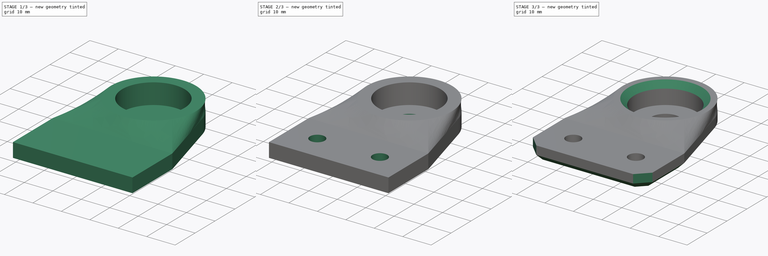
[diagram: build sequence overview — one tinted view per stage of 3, left to right]
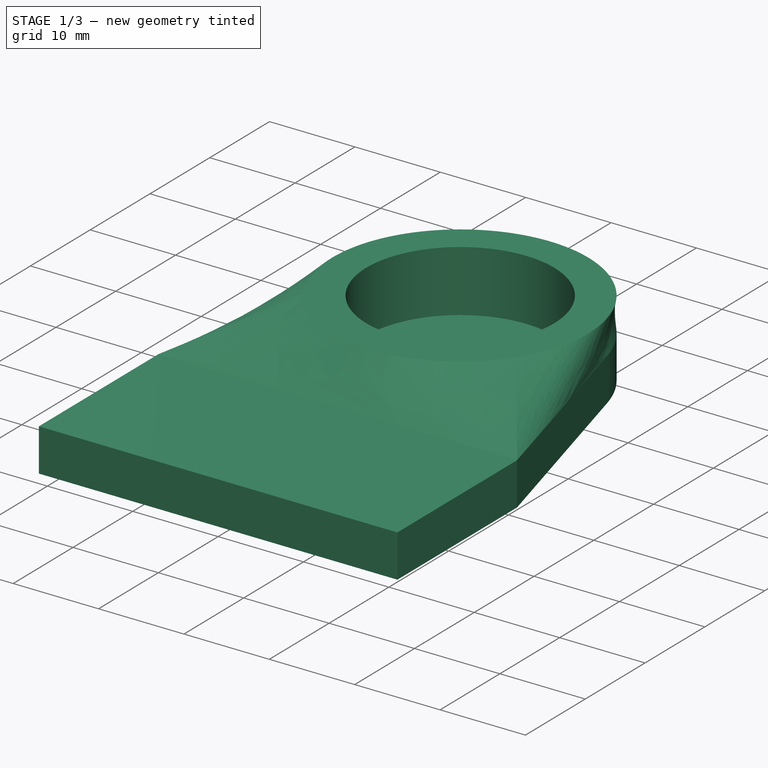
[diagram: stage 1 of 3 — iso view after this stage's code; geometry added in this stage tinted green]
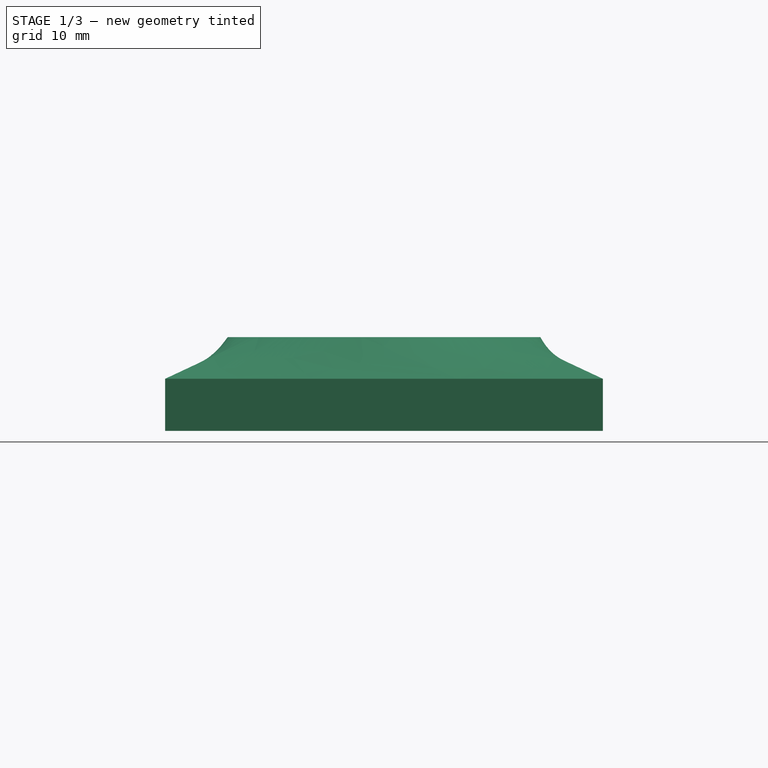
[diagram: stage 1 of 3 — front view after this stage's code; geometry added in this stage tinted green]
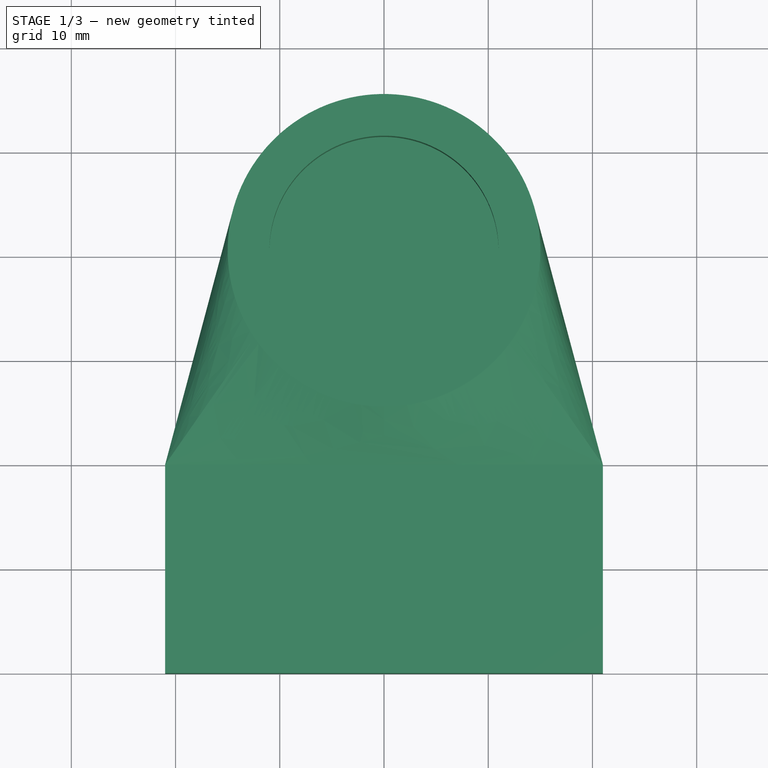
[diagram: stage 1 of 3 — top view after this stage's code; geometry added in this stage tinted green]
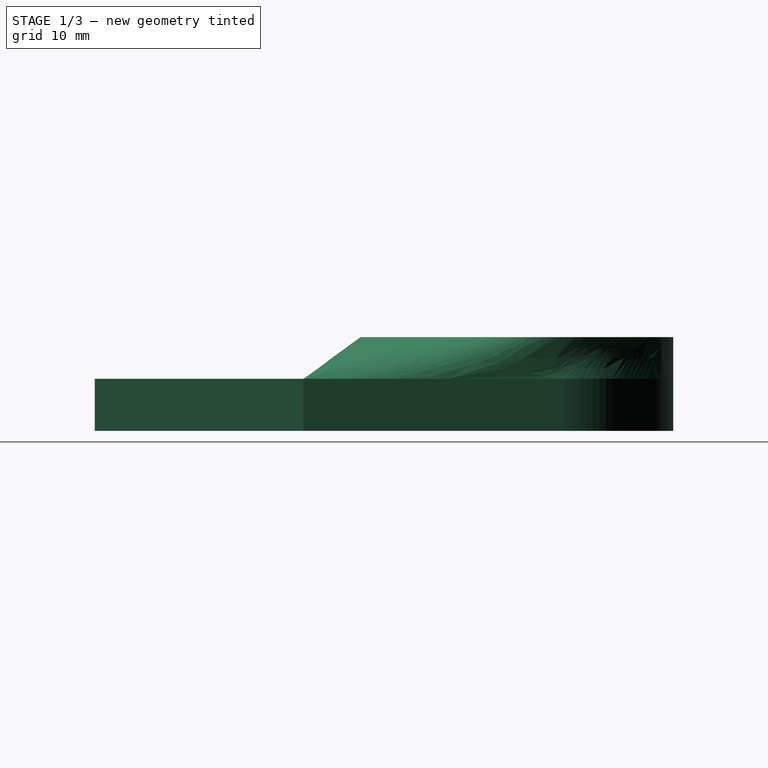
[diagram: stage 1 of 3 — right view after this stage's code; geometry added in this stage tinted green]
FCSTD DOCUMENT  (FreeCAD 0.19R24276 (Git))
Label: pillow_box_608
License: All rights reserved
LicenseURL: http://en.wikipedia.org/wiki/All_rights_reserved
objects: Sketcher::SketchObject×6, PartDesign::Pocket×3, PartDesign::Chamfer×3, PartDesign::Pad×1, PartDesign::Plane×1, PartDesign::AdditiveLoft×1, PartDesign::Body×1
note: 24 computed .brp shape members not serialized (recipe doc carries the construction recipe); baked Part::Feature solids carry a one-line shape summary decoded from their .brp

FEATURE [Sketcher::SketchObject] Sketch
  FullyConstrained = true
  MapMode = 5
  Support = -> [XY_Plane]
  sketch-geometry (18):
    g0: LineSegment StartX=-21 StartY=20 StartZ=0 EndX=-21 EndY=0 EndZ=0
    g1: LineSegment StartX=-21 StartY=0 StartZ=0 EndX=21 EndY=0 EndZ=0
    g2: LineSegment StartX=21 StartY=0 StartZ=0 EndX=21 EndY=20 EndZ=0
    g3: Circle CenterX=-11 CenterY=10 CenterZ=0 NormalX=0 NormalY=0 NormalZ=1 AngleXU=0 Radius=2.6
    g4: Circle CenterX=11 CenterY=10 CenterZ=0 NormalX=0 NormalY=0 NormalZ=1 AngleXU=0 Radius=2.6
    g5: Circle CenterX=0 CenterY=40.5 CenterZ=0 NormalX=0 NormalY=0 NormalZ=1 AngleXU=0 Radius=11
    g6: LineSegment StartX=-21 StartY=20 StartZ=0 EndX=21 EndY=20 EndZ=0
    g7: GeomPoint X=0 Y=20 Z=0
    g8: Circle CenterX=-15.5 CenterY=25 CenterZ=0 NormalX=0 NormalY=0 NormalZ=1 AngleXU=0 Radius=1.75
    g9: Circle CenterX=-15.5 CenterY=56 CenterZ=0 NormalX=0 NormalY=0 NormalZ=1 AngleXU=0 Radius=1.75
    g10: Circle CenterX=15.5 CenterY=56 CenterZ=0 NormalX=0 NormalY=0 NormalZ=1 AngleXU=0 Radius=1.75
    g11: Circle CenterX=15.5 CenterY=25 CenterZ=0 NormalX=0 NormalY=0 NormalZ=1 AngleXU=0 Radius=1.75
    g12: LineSegment StartX=-21 StartY=10 StartZ=0 EndX=21 EndY=10 EndZ=0
    g13: LineSegment StartX=-11 StartY=40.5 StartZ=0 EndX=-11 EndY=10 EndZ=0
    g14: LineSegment StartX=11 StartY=40.5 StartZ=0 EndX=11 EndY=10 EndZ=0
    g15: ArcOfCircle CenterX=0 CenterY=40.5 CenterZ=0 NormalX=0 NormalY=0 NormalZ=1 AngleXU=0 Radius=15 StartAngle=0.260953 EndAngle=2.88064
    g16: LineSegment StartX=-14.4922 StartY=44.37 StartZ=0 EndX=-21 EndY=20 EndZ=0
    g17: LineSegment StartX=14.4922 StartY=44.37 StartZ=0 EndX=21 EndY=20 EndZ=0
  constraints (47):
    c: PointOnObject(g0,g-1)
    c: Vertical(g0)
    c: Coincident(g1,g0)
    c: PointOnObject(g1,g-1)
    c: Coincident(g2,g1)
    c: Vertical(g2)
    c: Diameter(g3) = 5.2
    c: Equal(g3,g4)
    c: PointOnObject(g5,g-2)
    c: Diameter(g5) = 22
    c: Symmetric(g6,g6,g-2)
    c: Symmetric(g6,g6,g7)
    c: DistanceY(g-1,g7) = 20
    c: Diameter(g8) = 3.5
    c: Equal(g8,g9)
    c: Equal(g9,g10)
    c: Equal(g10,g11)
    c: Vertical(g9,g8)
    c: Horizontal(g9,g10)
    c: Vertical(g10,g11)
    c: DistanceY(g8,g9) = 31
    c: DistanceX(g9,g10) = 31
    c: Symmetric(g8,g10,g5)
    c: DistanceY(g3,g8) = 15
    c: PointOnObject(g12,g2)
    c: Horizontal(g12)
    c: Symmetric(g0,g0,g12)
    c: PointOnObject(g3,g12)
    c: PointOnObject(g4,g12)
    c: Horizontal(g11,g8)
    c: PointOnObject(g13,g5)
    c: Vertical(g13)
    c: Tangent(g5,g13)
    c: Coincident(g3,g13)
    c: PointOnObject(g14,g5)
    c: Vertical(g14)
    c: Tangent(g5,g14)
    c: Coincident(g4,g14)
    c: Coincident(g6,g2)
    c: Coincident(g6,g0)
    c: DistanceX(g0,g3) = 10
    c: Coincident(g15,g5)
    c: Diameter(g15) = 30
    c: Coincident(g16,g0)
    c: Coincident(g17,g2)
    c: Tangent(g15,g16) = -1.5708
    c: Tangent(g15,g17) = 1.5708
FEATURE [PartDesign::Pad] Pad
  Direction = (1,1,1)
  Length = 5
  Length2 = 100
  Profile = -> Sketch
  Type = 0
FEATURE [Sketcher::SketchObject] Sketch001
  ExternalGeometry = -> [Pad]
  FullyConstrained = true
  MapMode = 5
  Placement = pos=(0,0,5) rot=(0,0,1;0rad)
  Support = -> [Pad]
  sketch-geometry (4):
    g0: LineSegment StartX=-21 StartY=20 StartZ=0 EndX=21 EndY=20 EndZ=0
    g1: LineSegment StartX=21 StartY=20 StartZ=0 EndX=14.4922 EndY=44.37 EndZ=0
    g2: LineSegment StartX=-14.4922 StartY=44.37 StartZ=0 EndX=-21 EndY=20 EndZ=0
    g3: ArcOfCircle CenterX=0 CenterY=40.5 CenterZ=0 NormalX=0 NormalY=0 NormalZ=1 AngleXU=0 Radius=15 StartAngle=0.260953 EndAngle=2.88064
  constraints (9):
    c: Coincident(g0,g-4)
    c: Coincident(g0,g-5)
    c: Coincident(g1,g0)
    c: Coincident(g1,g-5)
    c: Coincident(g2,g-4)
    c: Coincident(g2,g0)
    c: Coincident(g3,g-3)
    c: Coincident(g3,g1)
    c: Coincident(g3,g2)
FEATURE [PartDesign::Plane] DatumPlane
  AttachmentOffset = pos=(0,0,9) rot=(0,0,1;0rad)
  Length = 62.6886
  MapMode = 5
  Placement = pos=(0,0,9) rot=(0,0,1;0rad)
  ResizeMode = 0
  Support = -> [XY_Plane]
  Width = 93.1886
FEATURE [Sketcher::SketchObject] Sketch002
  ExternalGeometry = -> [Sketch001]
  FullyConstrained = true
  MapMode = 5
  Placement = pos=(0,0,9) rot=(0,0,1;0rad)
  Support = -> [DatumPlane]
  sketch-geometry (1):
    g0: Circle CenterX=0 CenterY=40.5 CenterZ=0 NormalX=0 NormalY=0 NormalZ=1 AngleXU=0 Radius=15
  constraints (2):
    c: Coincident(g0,g-3)
    c: PointOnObject(g-3,g0)
FEATURE [PartDesign::AdditiveLoft] AdditiveLoft
  BaseFeature = -> Pad
  Closed = false
  Profile = -> Sketch001
  Refine = true
  Ruled = false
  Sections = -> [Sketch002]
FEATURE [Sketcher::SketchObject] Sketch003
  ExternalGeometry = -> [AdditiveLoft]
  FullyConstrained = true
  MapMode = 5
  Placement = pos=(0,0,9) rot=(0,0,1;0rad)
  Support = -> [AdditiveLoft]
  sketch-geometry (1):
    g0: Circle CenterX=0 CenterY=40.5 CenterZ=0 NormalX=0 NormalY=0 NormalZ=1 AngleXU=0 Radius=11
  constraints (2):
    c: Coincident(g0,g-3)
    c: Diameter(g0) = 22
FEATURE [PartDesign::Pocket] Pocket
  BaseFeature = -> AdditiveLoft
  Length = 7.2
  Length2 = 100
  Profile = -> Sketch003
  Type = 0
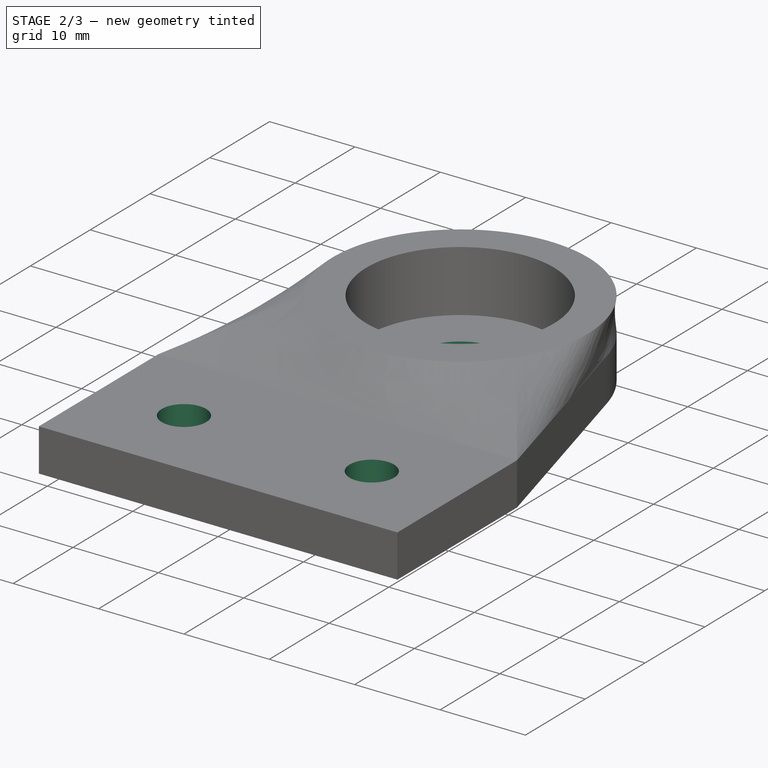
[diagram: stage 2 of 3 — iso view after this stage's code; geometry added in this stage tinted green]
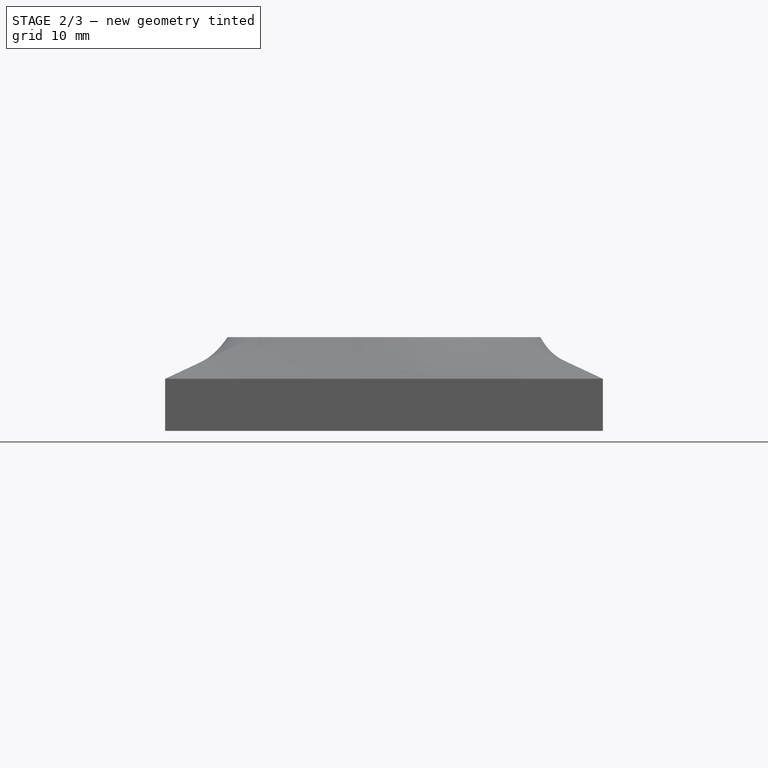
[diagram: stage 2 of 3 — front view after this stage's code; geometry added in this stage tinted green]
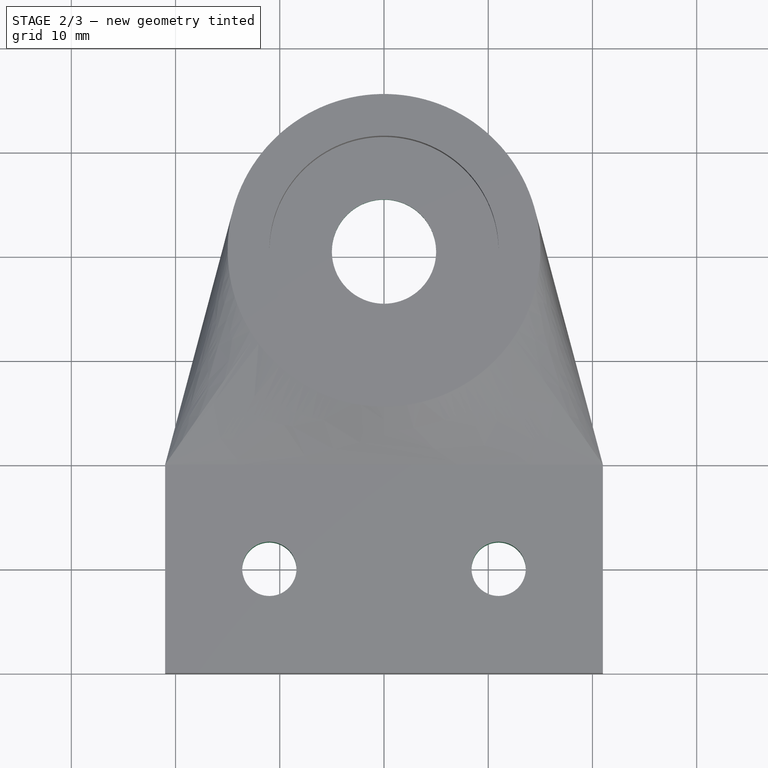
[diagram: stage 2 of 3 — top view after this stage's code; geometry added in this stage tinted green]
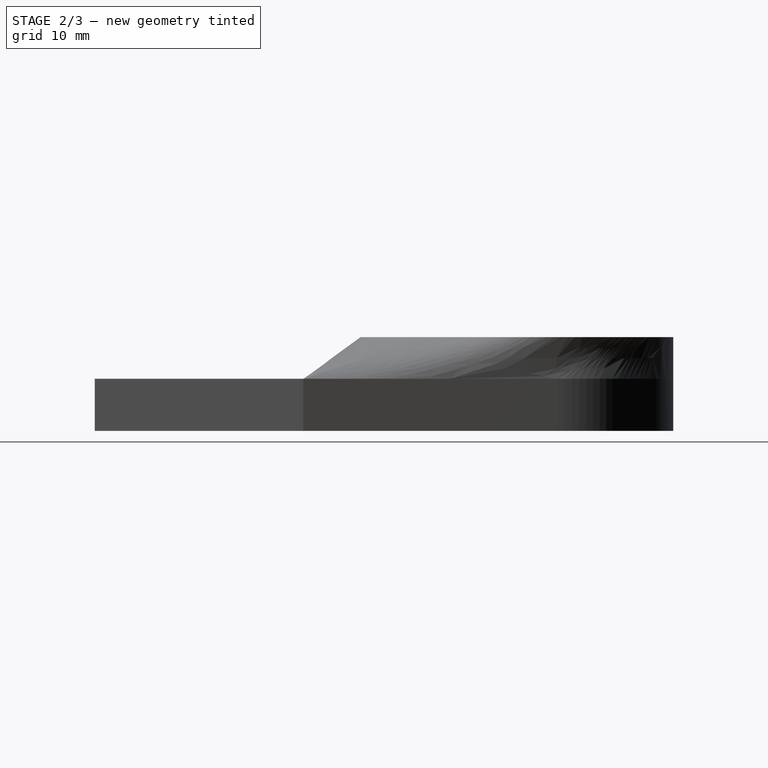
[diagram: stage 2 of 3 — right view after this stage's code; geometry added in this stage tinted green]
FEATURE [Sketcher::SketchObject] Sketch004
  ExternalGeometry = -> [Pocket]
  FullyConstrained = true
  MapMode = 5
  Placement = pos=(0,0,1.8) rot=(0,0,1;0rad)
  Support = -> [Pocket]
  sketch-geometry (1):
    g0: Circle CenterX=0 CenterY=40.5 CenterZ=0 NormalX=0 NormalY=0 NormalZ=1 AngleXU=0 Radius=5
  constraints (2):
    c: Coincident(g0,g-3)
    c: Diameter(g0) = 10
FEATURE [PartDesign::Pocket] Pocket001
  BaseFeature = -> Pocket
  Length = 5
  Length2 = 100
  Profile = -> Sketch004
  Type = 1
FEATURE [Sketcher::SketchObject] Sketch005
  ExternalGeometry = -> [Pocket001]
  FullyConstrained = true
  MapMode = 5
  Placement = pos=(0,0,5) rot=(0,0,1;0rad)
  Support = -> [Pocket001]
  sketch-geometry (5):
    g0: Circle CenterX=-11 CenterY=10 CenterZ=0 NormalX=0 NormalY=0 NormalZ=1 AngleXU=0 Radius=2.6
    g1: Circle CenterX=11 CenterY=10 CenterZ=0 NormalX=0 NormalY=0 NormalZ=1 AngleXU=0 Radius=2.6
    g2: LineSegment StartX=-21 StartY=10 StartZ=0 EndX=21 EndY=10 EndZ=0
    g3: LineSegment StartX=-11 StartY=40.5 StartZ=0 EndX=-11 EndY=10 EndZ=0
    g4: LineSegment StartX=11 StartY=40.5 StartZ=0 EndX=11 EndY=10 EndZ=0
  constraints (15):
    c: PointOnObject(g2,g-4)
    c: Horizontal(g2)
    c: Symmetric(g-3,g-3,g2)
    c: PointOnObject(g0,g2)
    c: PointOnObject(g1,g2)
    c: Diameter(g0) = 5.2
    c: Equal(g0,g1)
    c: PointOnObject(g3,g-5)
    c: Vertical(g3)
    c: Tangent(g-5,g3)
    c: Coincident(g0,g3)
    c: PointOnObject(g4,g-5)
    c: Vertical(g4)
    c: Tangent(g-5,g4)
    c: Coincident(g1,g4)
FEATURE [PartDesign::Pocket] Pocket002
  BaseFeature = -> Pocket001
  Length = 5
  Length2 = 100
  Profile = -> Sketch005
  Type = 1
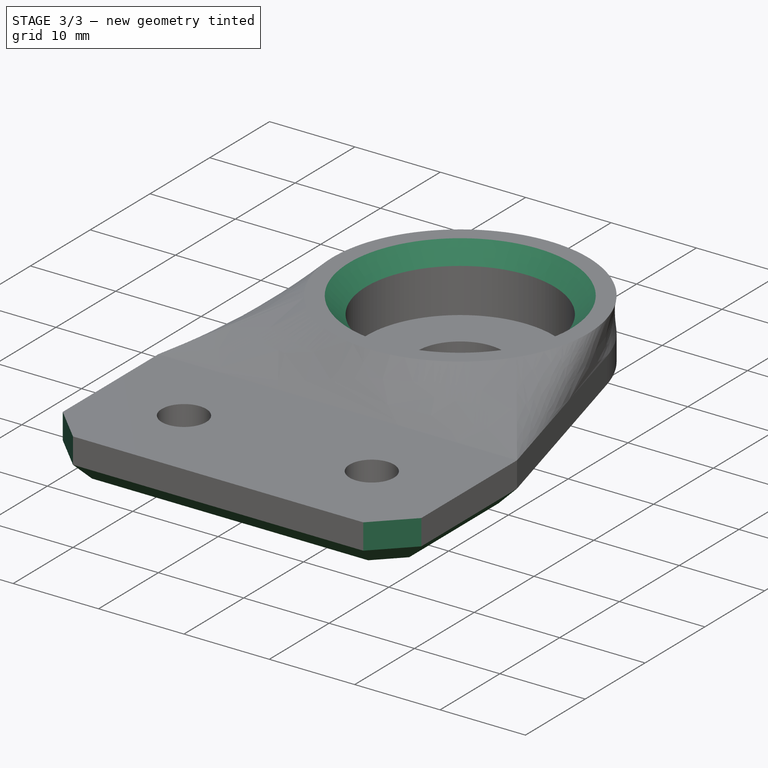
[diagram: stage 3 of 3 — iso view after this stage's code; geometry added in this stage tinted green]
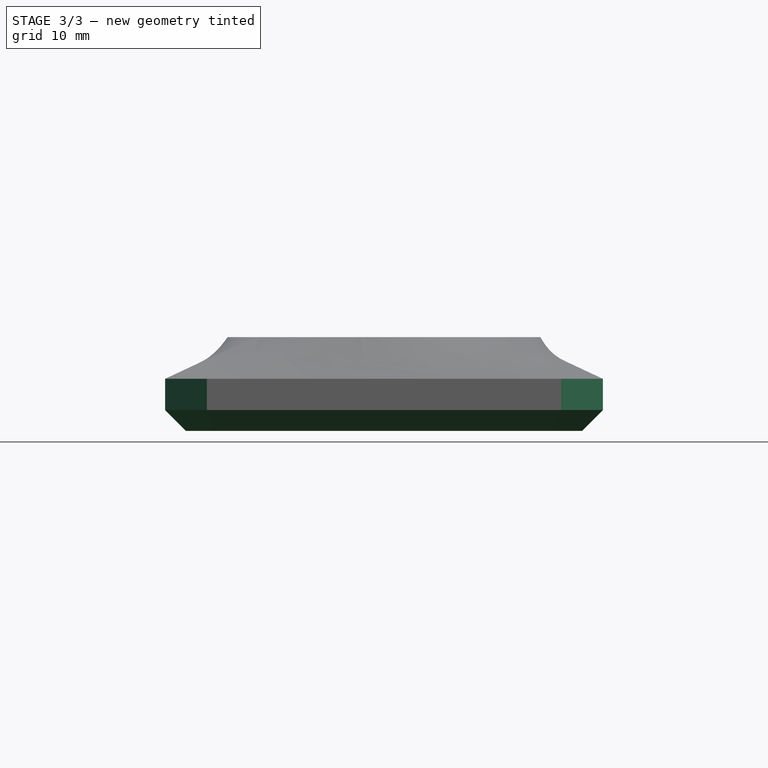
[diagram: stage 3 of 3 — front view after this stage's code; geometry added in this stage tinted green]
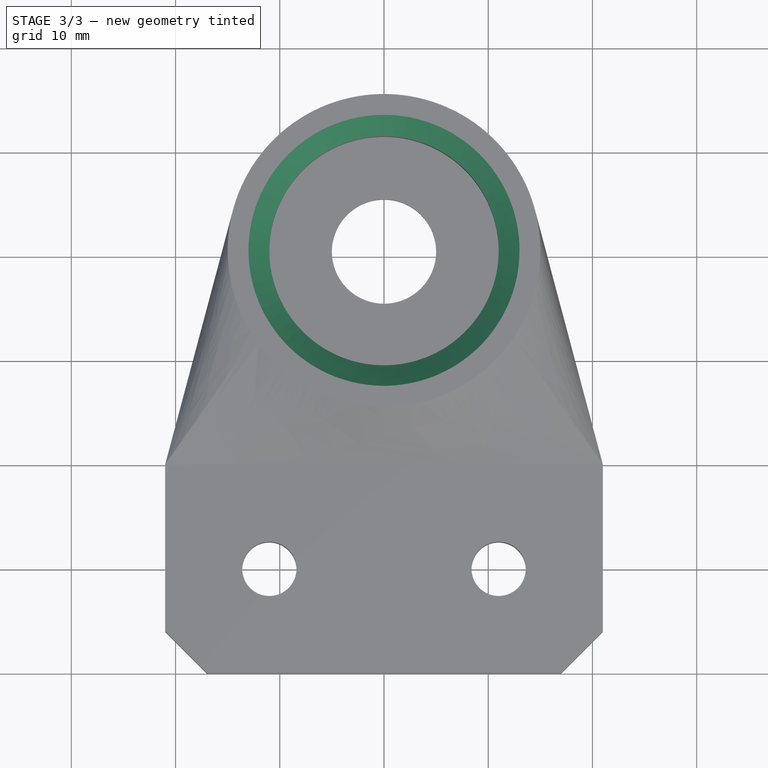
[diagram: stage 3 of 3 — top view after this stage's code; geometry added in this stage tinted green]
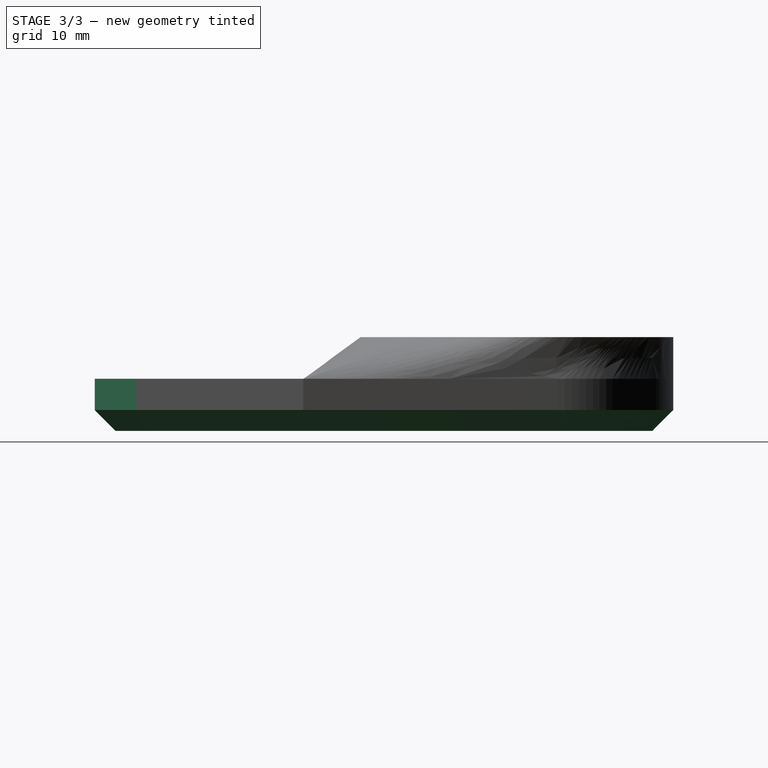
[diagram: stage 3 of 3 — right view after this stage's code; geometry added in this stage tinted green]
FEATURE [PartDesign::Chamfer] Chamfer
  Angle = 45
  Base = -> Pocket002 [Edge39]
  BaseFeature = -> Pocket002
  ChamferType = 0
  FlipDirection = false
  Size = 2
  Size2 = 1
  SupportTransform = false
FEATURE [PartDesign::Chamfer] Chamfer001
  Angle = 45
  Base = -> Chamfer [Edge34,Edge41]
  BaseFeature = -> Chamfer
  ChamferType = 0
  FlipDirection = false
  Size = 4
  Size2 = 1
  SupportTransform = false
FEATURE [PartDesign::Chamfer] Chamfer002
  Angle = 45
  Base = -> Chamfer001 [Edge12,Edge17,Edge22,Edge19,Edge27,Edge28,Edge29,Edge9]
  BaseFeature = -> Chamfer001
  ChamferType = 0
  FlipDirection = false
  Size = 2
  Size2 = 1
  SupportTransform = false
FEATURE [PartDesign::Body] Body
  Group = -> [Sketch,Pad,Sketch001,DatumPlane,Sketch002,AdditiveLoft,Sketch003,Pocket,Sketch004,Pocket001,Sketch005,Pocket002,Chamfer,Chamfer001,Chamfer002]
  Origin = -> Origin
  Tip = -> Chamfer002
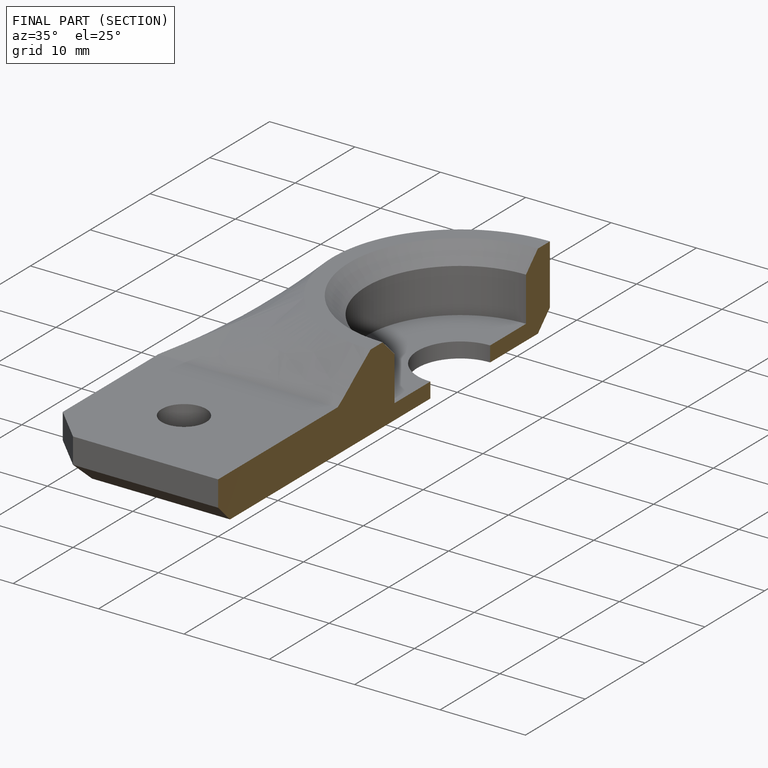
[diagram: finished part — half-section view (interior)]
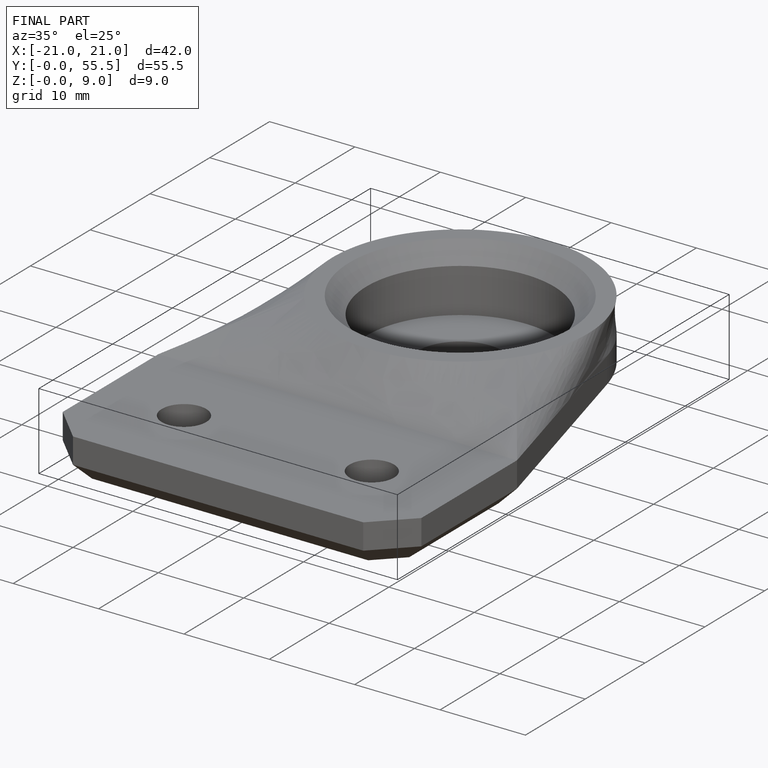
[diagram: finished part — iso view with bounding-box wireframe]
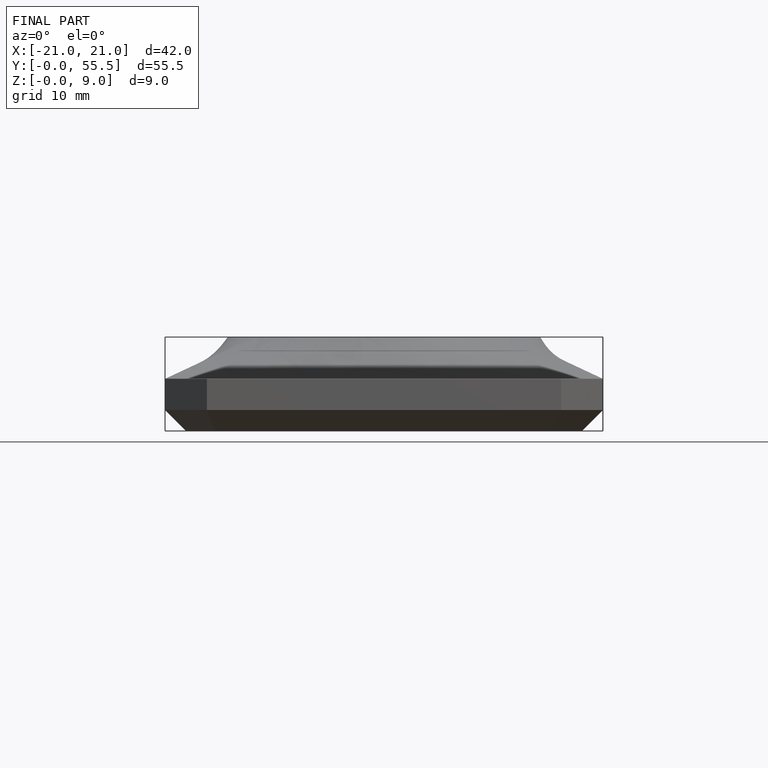
[diagram: finished part — front view with bounding-box wireframe]
